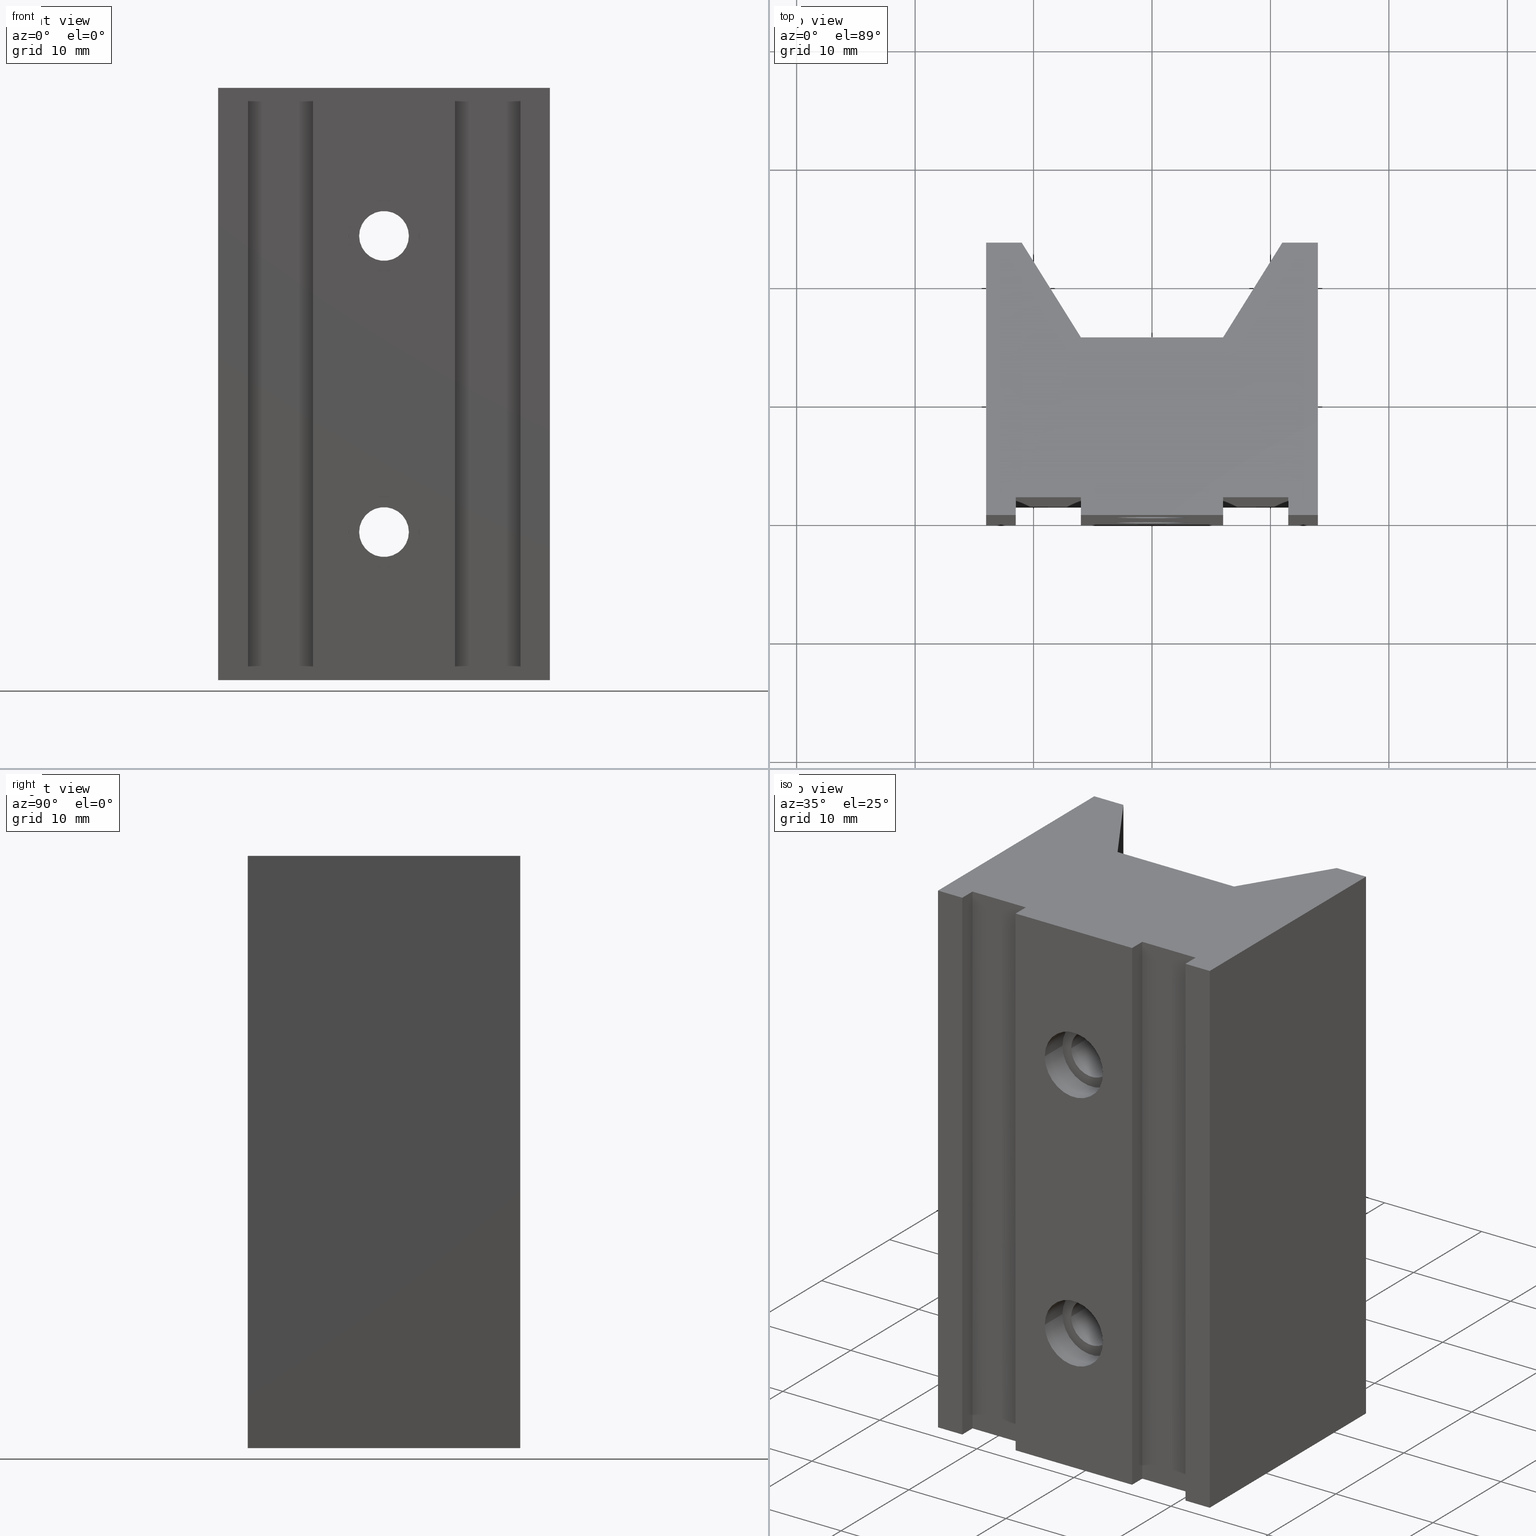
[diagram: canonical four-view strip — front | top / right | iso, engineering-drawing reading convention]
A machine part, canonical four-view strip (front | top / right | iso — engineering-drawing reading convention). The complete STEP part file that produces these views, byte-faithful:
ISO-10303-21;
HEADER;
/* Generated by software containing ST-Developer
 * from STEP Tools, Inc. (www.steptools.com) 
 */

FILE_DESCRIPTION(
/* description */ ('WKZ-0473'),
/* implementation_level */ '2;1');

FILE_NAME(
/* name */ 'O_3_02_10_05_00_WKZ-0473.stp',
/* time_stamp */ '2025-11-18T16:16:29+01:00',
/* author */ ('d.fischer'),
/* organization */ (''),
/* preprocessor_version */ 'ST-DEVELOPER v20',
/* originating_system */ 'Autodesk Inventor 2025',
/* authorisation */ '');

FILE_SCHEMA (('AUTOMOTIVE_DESIGN { 1 0 10303 214 3 1 1 }'));
ENDSEC;

DATA;
#10=MECHANICAL_DESIGN_GEOMETRIC_PRESENTATION_REPRESENTATION('',(#13),#846);
#11=SHAPE_REPRESENTATION_RELATIONSHIP('SRR','None',#853,#12);
#12=ADVANCED_BREP_SHAPE_REPRESENTATION('',(#14),#845);
#13=STYLED_ITEM('',(#862),#14);
#14=MANIFOLD_SOLID_BREP('Volumenk\X\F6rper1',#505);
#15=FACE_BOUND('',#75,.T.);
#16=FACE_BOUND('',#78,.T.);
#17=FACE_BOUND('',#80,.T.);
#18=FACE_BOUND('',#84,.T.);
#19=FACE_BOUND('',#94,.T.);
#20=FACE_BOUND('',#95,.T.);
#21=FACE_BOUND('',#104,.T.);
#22=FACE_BOUND('',#105,.T.);
#23=PLANE('',#531);
#24=PLANE('',#536);
#25=PLANE('',#538);
#26=PLANE('',#544);
#27=PLANE('',#550);
#28=PLANE('',#551);
#29=PLANE('',#552);
#30=PLANE('',#553);
#31=PLANE('',#554);
#32=PLANE('',#555);
#33=PLANE('',#556);
#34=PLANE('',#557);
#35=PLANE('',#558);
#36=PLANE('',#559);
#37=PLANE('',#560);
#38=PLANE('',#561);
#39=PLANE('',#562);
#40=PLANE('',#563);
#41=PLANE('',#564);
#42=PLANE('',#565);
#43=PLANE('',#566);
#44=PLANE('',#567);
#45=FACE_OUTER_BOUND('',#73,.T.);
#46=FACE_OUTER_BOUND('',#74,.T.);
#47=FACE_OUTER_BOUND('',#76,.T.);
#48=FACE_OUTER_BOUND('',#77,.T.);
#49=FACE_OUTER_BOUND('',#79,.T.);
#50=FACE_OUTER_BOUND('',#81,.T.);
#51=FACE_OUTER_BOUND('',#82,.T.);
#52=FACE_OUTER_BOUND('',#83,.T.);
#53=FACE_OUTER_BOUND('',#85,.T.);
#54=FACE_OUTER_BOUND('',#86,.T.);
#55=FACE_OUTER_BOUND('',#87,.T.);
#56=FACE_OUTER_BOUND('',#88,.T.);
#57=FACE_OUTER_BOUND('',#89,.T.);
#58=FACE_OUTER_BOUND('',#90,.T.);
#59=FACE_OUTER_BOUND('',#91,.T.);
#60=FACE_OUTER_BOUND('',#92,.T.);
#61=FACE_OUTER_BOUND('',#93,.T.);
#62=FACE_OUTER_BOUND('',#96,.T.);
#63=FACE_OUTER_BOUND('',#97,.T.);
#64=FACE_OUTER_BOUND('',#98,.T.);
#65=FACE_OUTER_BOUND('',#99,.T.);
#66=FACE_OUTER_BOUND('',#100,.T.);
#67=FACE_OUTER_BOUND('',#101,.T.);
#68=FACE_OUTER_BOUND('',#102,.T.);
#69=FACE_OUTER_BOUND('',#103,.T.);
#70=FACE_OUTER_BOUND('',#106,.T.);
#71=FACE_OUTER_BOUND('',#107,.T.);
#72=FACE_OUTER_BOUND('',#108,.T.);
#73=EDGE_LOOP('',(#339,#340,#341,#342));
#74=EDGE_LOOP('',(#343));
#75=EDGE_LOOP('',(#344));
#76=EDGE_LOOP('',(#345,#346,#347,#348));
#77=EDGE_LOOP('',(#349));
#78=EDGE_LOOP('',(#350));
#79=EDGE_LOOP('',(#351));
#80=EDGE_LOOP('',(#352));
#81=EDGE_LOOP('',(#353,#354,#355,#356));
#82=EDGE_LOOP('',(#357,#358,#359,#360));
#83=EDGE_LOOP('',(#361));
#84=EDGE_LOOP('',(#362));
#85=EDGE_LOOP('',(#363,#364,#365,#366));
#86=EDGE_LOOP('',(#367,#368,#369,#370));
#87=EDGE_LOOP('',(#371,#372,#373,#374,#375,#376,#377,#378,#379,#380,#381,
#382,#383,#384,#385,#386));
#88=EDGE_LOOP('',(#387,#388,#389,#390));
#89=EDGE_LOOP('',(#391,#392,#393,#394));
#90=EDGE_LOOP('',(#395,#396,#397,#398));
#91=EDGE_LOOP('',(#399,#400,#401,#402));
#92=EDGE_LOOP('',(#403,#404,#405,#406));
#93=EDGE_LOOP('',(#407,#408,#409,#410));
#94=EDGE_LOOP('',(#411));
#95=EDGE_LOOP('',(#412));
#96=EDGE_LOOP('',(#413,#414,#415,#416));
#97=EDGE_LOOP('',(#417,#418,#419,#420));
#98=EDGE_LOOP('',(#421,#422,#423,#424));
#99=EDGE_LOOP('',(#425,#426,#427,#428));
#100=EDGE_LOOP('',(#429,#430,#431,#432));
#101=EDGE_LOOP('',(#433,#434,#435,#436));
#102=EDGE_LOOP('',(#437,#438,#439,#440));
#103=EDGE_LOOP('',(#441,#442,#443,#444));
#104=EDGE_LOOP('',(#445));
#105=EDGE_LOOP('',(#446));
#106=EDGE_LOOP('',(#447,#448,#449,#450));
#107=EDGE_LOOP('',(#451,#452,#453,#454));
#108=EDGE_LOOP('',(#455,#456,#457,#458,#459,#460,#461,#462,#463,#464,#465,
#466,#467,#468,#469,#470));
#109=LINE('',#709,#163);
#110=LINE('',#718,#164);
#111=LINE('',#731,#165);
#112=LINE('',#733,#166);
#113=LINE('',#742,#167);
#114=LINE('',#744,#168);
#115=LINE('',#748,#169);
#116=LINE('',#750,#170);
#117=LINE('',#752,#171);
#118=LINE('',#754,#172);
#119=LINE('',#756,#173);
#120=LINE('',#758,#174);
#121=LINE('',#760,#175);
#122=LINE('',#762,#176);
#123=LINE('',#764,#177);
#124=LINE('',#766,#178);
#125=LINE('',#768,#179);
#126=LINE('',#770,#180);
#127=LINE('',#772,#181);
#128=LINE('',#774,#182);
#129=LINE('',#776,#183);
#130=LINE('',#777,#184);
#131=LINE('',#780,#185);
#132=LINE('',#782,#186);
#133=LINE('',#783,#187);
#134=LINE('',#786,#188);
#135=LINE('',#787,#189);
#136=LINE('',#790,#190);
#137=LINE('',#791,#191);
#138=LINE('',#794,#192);
#139=LINE('',#795,#193);
#140=LINE('',#798,#194);
#141=LINE('',#799,#195);
#142=LINE('',#802,#196);
#143=LINE('',#803,#197);
#144=LINE('',#806,#198);
#145=LINE('',#807,#199);
#146=LINE('',#810,#200);
#147=LINE('',#811,#201);
#148=LINE('',#814,#202);
#149=LINE('',#815,#203);
#150=LINE('',#818,#204);
#151=LINE('',#819,#205);
#152=LINE('',#822,#206);
#153=LINE('',#823,#207);
#154=LINE('',#826,#208);
#155=LINE('',#827,#209);
#156=LINE('',#830,#210);
#157=LINE('',#831,#211);
#158=LINE('',#834,#212);
#159=LINE('',#835,#213);
#160=LINE('',#838,#214);
#161=LINE('',#839,#215);
#162=LINE('',#841,#216);
#163=VECTOR('',#574,3.);
#164=VECTOR('',#585,3.);
#165=VECTOR('',#602,4.);
#166=VECTOR('',#605,2.1);
#167=VECTOR('',#616,4.);
#168=VECTOR('',#619,2.1);
#169=VECTOR('',#622,10.);
#170=VECTOR('',#623,10.);
#171=VECTOR('',#624,10.);
#172=VECTOR('',#625,10.);
#173=VECTOR('',#626,10.);
#174=VECTOR('',#627,10.);
#175=VECTOR('',#628,10.);
#176=VECTOR('',#629,10.);
#177=VECTOR('',#630,10.);
#178=VECTOR('',#631,10.);
#179=VECTOR('',#632,10.);
#180=VECTOR('',#633,10.);
#181=VECTOR('',#634,10.);
#182=VECTOR('',#635,10.);
#183=VECTOR('',#636,10.);
#184=VECTOR('',#637,10.);
#185=VECTOR('',#640,10.);
#186=VECTOR('',#641,10.);
#187=VECTOR('',#642,10.);
#188=VECTOR('',#645,10.);
#189=VECTOR('',#646,10.);
#190=VECTOR('',#649,10.);
#191=VECTOR('',#650,10.);
#192=VECTOR('',#653,10.);
#193=VECTOR('',#654,10.);
#194=VECTOR('',#657,10.);
#195=VECTOR('',#658,10.);
#196=VECTOR('',#661,10.);
#197=VECTOR('',#662,10.);
#198=VECTOR('',#665,10.);
#199=VECTOR('',#666,10.);
#200=VECTOR('',#669,10.);
#201=VECTOR('',#670,10.);
#202=VECTOR('',#673,10.);
#203=VECTOR('',#674,10.);
#204=VECTOR('',#677,10.);
#205=VECTOR('',#678,10.);
#206=VECTOR('',#681,10.);
#207=VECTOR('',#682,10.);
#208=VECTOR('',#685,10.);
#209=VECTOR('',#686,10.);
#210=VECTOR('',#689,10.);
#211=VECTOR('',#690,10.);
#212=VECTOR('',#693,10.);
#213=VECTOR('',#694,10.);
#214=VECTOR('',#697,10.);
#215=VECTOR('',#698,10.);
#216=VECTOR('',#701,10.);
#217=CIRCLE('',#529,3.);
#218=CIRCLE('',#530,3.);
#219=CIRCLE('',#532,2.1);
#220=CIRCLE('',#534,3.);
#221=CIRCLE('',#535,3.);
#222=CIRCLE('',#537,2.1);
#223=CIRCLE('',#539,4.);
#224=CIRCLE('',#540,2.1);
#225=CIRCLE('',#542,4.);
#226=CIRCLE('',#545,4.);
#227=CIRCLE('',#546,2.1);
#228=CIRCLE('',#548,4.);
#229=VERTEX_POINT('',#706);
#230=VERTEX_POINT('',#708);
#231=VERTEX_POINT('',#712);
#232=VERTEX_POINT('',#715);
#233=VERTEX_POINT('',#717);
#234=VERTEX_POINT('',#721);
#235=VERTEX_POINT('',#724);
#236=VERTEX_POINT('',#726);
#237=VERTEX_POINT('',#729);
#238=VERTEX_POINT('',#735);
#239=VERTEX_POINT('',#737);
#240=VERTEX_POINT('',#740);
#241=VERTEX_POINT('',#746);
#242=VERTEX_POINT('',#747);
#243=VERTEX_POINT('',#749);
#244=VERTEX_POINT('',#751);
#245=VERTEX_POINT('',#753);
#246=VERTEX_POINT('',#755);
#247=VERTEX_POINT('',#757);
#248=VERTEX_POINT('',#759);
#249=VERTEX_POINT('',#761);
#250=VERTEX_POINT('',#763);
#251=VERTEX_POINT('',#765);
#252=VERTEX_POINT('',#767);
#253=VERTEX_POINT('',#769);
#254=VERTEX_POINT('',#771);
#255=VERTEX_POINT('',#773);
#256=VERTEX_POINT('',#775);
#257=VERTEX_POINT('',#779);
#258=VERTEX_POINT('',#781);
#259=VERTEX_POINT('',#785);
#260=VERTEX_POINT('',#789);
#261=VERTEX_POINT('',#793);
#262=VERTEX_POINT('',#797);
#263=VERTEX_POINT('',#801);
#264=VERTEX_POINT('',#805);
#265=VERTEX_POINT('',#809);
#266=VERTEX_POINT('',#813);
#267=VERTEX_POINT('',#817);
#268=VERTEX_POINT('',#821);
#269=VERTEX_POINT('',#825);
#270=VERTEX_POINT('',#829);
#271=VERTEX_POINT('',#833);
#272=VERTEX_POINT('',#837);
#273=EDGE_CURVE('',#229,#229,#217,.T.);
#274=EDGE_CURVE('',#229,#230,#109,.T.);
#275=EDGE_CURVE('',#230,#230,#218,.T.);
#276=EDGE_CURVE('',#231,#231,#219,.T.);
#277=EDGE_CURVE('',#232,#232,#220,.T.);
#278=EDGE_CURVE('',#232,#233,#110,.T.);
#279=EDGE_CURVE('',#233,#233,#221,.T.);
#280=EDGE_CURVE('',#234,#234,#222,.T.);
#281=EDGE_CURVE('',#235,#235,#223,.T.);
#282=EDGE_CURVE('',#236,#236,#224,.T.);
#283=EDGE_CURVE('',#237,#237,#225,.T.);
#284=EDGE_CURVE('',#237,#235,#111,.T.);
#285=EDGE_CURVE('',#236,#231,#112,.T.);
#286=EDGE_CURVE('',#238,#238,#226,.T.);
#287=EDGE_CURVE('',#239,#239,#227,.T.);
#288=EDGE_CURVE('',#240,#240,#228,.T.);
#289=EDGE_CURVE('',#240,#238,#113,.T.);
#290=EDGE_CURVE('',#239,#234,#114,.T.);
#291=EDGE_CURVE('',#241,#242,#115,.T.);
#292=EDGE_CURVE('',#242,#243,#116,.T.);
#293=EDGE_CURVE('',#243,#244,#117,.T.);
#294=EDGE_CURVE('',#244,#245,#118,.T.);
#295=EDGE_CURVE('',#245,#246,#119,.T.);
#296=EDGE_CURVE('',#246,#247,#120,.T.);
#297=EDGE_CURVE('',#247,#248,#121,.T.);
#298=EDGE_CURVE('',#248,#249,#122,.T.);
#299=EDGE_CURVE('',#249,#250,#123,.T.);
#300=EDGE_CURVE('',#250,#251,#124,.T.);
#301=EDGE_CURVE('',#251,#252,#125,.T.);
#302=EDGE_CURVE('',#252,#253,#126,.T.);
#303=EDGE_CURVE('',#253,#254,#127,.T.);
#304=EDGE_CURVE('',#254,#255,#128,.T.);
#305=EDGE_CURVE('',#255,#256,#129,.T.);
#306=EDGE_CURVE('',#256,#241,#130,.T.);
#307=EDGE_CURVE('',#257,#242,#131,.T.);
#308=EDGE_CURVE('',#258,#257,#132,.T.);
#309=EDGE_CURVE('',#243,#258,#133,.T.);
#310=EDGE_CURVE('',#259,#258,#134,.T.);
#311=EDGE_CURVE('',#244,#259,#135,.T.);
#312=EDGE_CURVE('',#260,#259,#136,.T.);
#313=EDGE_CURVE('',#245,#260,#137,.T.);
#314=EDGE_CURVE('',#261,#260,#138,.T.);
#315=EDGE_CURVE('',#246,#261,#139,.T.);
#316=EDGE_CURVE('',#262,#261,#140,.T.);
#317=EDGE_CURVE('',#247,#262,#141,.T.);
#318=EDGE_CURVE('',#263,#262,#142,.T.);
#319=EDGE_CURVE('',#248,#263,#143,.T.);
#320=EDGE_CURVE('',#264,#263,#144,.T.);
#321=EDGE_CURVE('',#249,#264,#145,.T.);
#322=EDGE_CURVE('',#265,#264,#146,.T.);
#323=EDGE_CURVE('',#250,#265,#147,.T.);
#324=EDGE_CURVE('',#266,#265,#148,.T.);
#325=EDGE_CURVE('',#251,#266,#149,.T.);
#326=EDGE_CURVE('',#267,#266,#150,.T.);
#327=EDGE_CURVE('',#252,#267,#151,.T.);
#328=EDGE_CURVE('',#268,#267,#152,.T.);
#329=EDGE_CURVE('',#253,#268,#153,.T.);
#330=EDGE_CURVE('',#269,#268,#154,.T.);
#331=EDGE_CURVE('',#254,#269,#155,.T.);
#332=EDGE_CURVE('',#270,#269,#156,.T.);
#333=EDGE_CURVE('',#255,#270,#157,.T.);
#334=EDGE_CURVE('',#271,#270,#158,.T.);
#335=EDGE_CURVE('',#256,#271,#159,.T.);
#336=EDGE_CURVE('',#272,#271,#160,.T.);
#337=EDGE_CURVE('',#241,#272,#161,.T.);
#338=EDGE_CURVE('',#257,#272,#162,.T.);
#339=ORIENTED_EDGE('',*,*,#273,.F.);
#340=ORIENTED_EDGE('',*,*,#274,.T.);
#341=ORIENTED_EDGE('',*,*,#275,.F.);
#342=ORIENTED_EDGE('',*,*,#274,.F.);
#343=ORIENTED_EDGE('',*,*,#275,.T.);
#344=ORIENTED_EDGE('',*,*,#276,.F.);
#345=ORIENTED_EDGE('',*,*,#277,.F.);
#346=ORIENTED_EDGE('',*,*,#278,.T.);
#347=ORIENTED_EDGE('',*,*,#279,.F.);
#348=ORIENTED_EDGE('',*,*,#278,.F.);
#349=ORIENTED_EDGE('',*,*,#279,.T.);
#350=ORIENTED_EDGE('',*,*,#280,.F.);
#351=ORIENTED_EDGE('',*,*,#281,.T.);
#352=ORIENTED_EDGE('',*,*,#282,.F.);
#353=ORIENTED_EDGE('',*,*,#283,.F.);
#354=ORIENTED_EDGE('',*,*,#284,.T.);
#355=ORIENTED_EDGE('',*,*,#281,.F.);
#356=ORIENTED_EDGE('',*,*,#284,.F.);
#357=ORIENTED_EDGE('',*,*,#282,.T.);
#358=ORIENTED_EDGE('',*,*,#285,.T.);
#359=ORIENTED_EDGE('',*,*,#276,.T.);
#360=ORIENTED_EDGE('',*,*,#285,.F.);
#361=ORIENTED_EDGE('',*,*,#286,.T.);
#362=ORIENTED_EDGE('',*,*,#287,.F.);
#363=ORIENTED_EDGE('',*,*,#288,.F.);
#364=ORIENTED_EDGE('',*,*,#289,.T.);
#365=ORIENTED_EDGE('',*,*,#286,.F.);
#366=ORIENTED_EDGE('',*,*,#289,.F.);
#367=ORIENTED_EDGE('',*,*,#287,.T.);
#368=ORIENTED_EDGE('',*,*,#290,.T.);
#369=ORIENTED_EDGE('',*,*,#280,.T.);
#370=ORIENTED_EDGE('',*,*,#290,.F.);
#371=ORIENTED_EDGE('',*,*,#291,.T.);
#372=ORIENTED_EDGE('',*,*,#292,.T.);
#373=ORIENTED_EDGE('',*,*,#293,.T.);
#374=ORIENTED_EDGE('',*,*,#294,.T.);
#375=ORIENTED_EDGE('',*,*,#295,.T.);
#376=ORIENTED_EDGE('',*,*,#296,.T.);
#377=ORIENTED_EDGE('',*,*,#297,.T.);
#378=ORIENTED_EDGE('',*,*,#298,.T.);
#379=ORIENTED_EDGE('',*,*,#299,.T.);
#380=ORIENTED_EDGE('',*,*,#300,.T.);
#381=ORIENTED_EDGE('',*,*,#301,.T.);
#382=ORIENTED_EDGE('',*,*,#302,.T.);
#383=ORIENTED_EDGE('',*,*,#303,.T.);
#384=ORIENTED_EDGE('',*,*,#304,.T.);
#385=ORIENTED_EDGE('',*,*,#305,.T.);
#386=ORIENTED_EDGE('',*,*,#306,.T.);
#387=ORIENTED_EDGE('',*,*,#307,.F.);
#388=ORIENTED_EDGE('',*,*,#308,.F.);
#389=ORIENTED_EDGE('',*,*,#309,.F.);
#390=ORIENTED_EDGE('',*,*,#292,.F.);
#391=ORIENTED_EDGE('',*,*,#309,.T.);
#392=ORIENTED_EDGE('',*,*,#310,.F.);
#393=ORIENTED_EDGE('',*,*,#311,.F.);
#394=ORIENTED_EDGE('',*,*,#293,.F.);
#395=ORIENTED_EDGE('',*,*,#311,.T.);
#396=ORIENTED_EDGE('',*,*,#312,.F.);
#397=ORIENTED_EDGE('',*,*,#313,.F.);
#398=ORIENTED_EDGE('',*,*,#294,.F.);
#399=ORIENTED_EDGE('',*,*,#313,.T.);
#400=ORIENTED_EDGE('',*,*,#314,.F.);
#401=ORIENTED_EDGE('',*,*,#315,.F.);
#402=ORIENTED_EDGE('',*,*,#295,.F.);
#403=ORIENTED_EDGE('',*,*,#315,.T.);
#404=ORIENTED_EDGE('',*,*,#316,.F.);
#405=ORIENTED_EDGE('',*,*,#317,.F.);
#406=ORIENTED_EDGE('',*,*,#296,.F.);
#407=ORIENTED_EDGE('',*,*,#317,.T.);
#408=ORIENTED_EDGE('',*,*,#318,.F.);
#409=ORIENTED_EDGE('',*,*,#319,.F.);
#410=ORIENTED_EDGE('',*,*,#297,.F.);
#411=ORIENTED_EDGE('',*,*,#273,.T.);
#412=ORIENTED_EDGE('',*,*,#277,.T.);
#413=ORIENTED_EDGE('',*,*,#319,.T.);
#414=ORIENTED_EDGE('',*,*,#320,.F.);
#415=ORIENTED_EDGE('',*,*,#321,.F.);
#416=ORIENTED_EDGE('',*,*,#298,.F.);
#417=ORIENTED_EDGE('',*,*,#321,.T.);
#418=ORIENTED_EDGE('',*,*,#322,.F.);
#419=ORIENTED_EDGE('',*,*,#323,.F.);
#420=ORIENTED_EDGE('',*,*,#299,.F.);
#421=ORIENTED_EDGE('',*,*,#323,.T.);
#422=ORIENTED_EDGE('',*,*,#324,.F.);
#423=ORIENTED_EDGE('',*,*,#325,.F.);
#424=ORIENTED_EDGE('',*,*,#300,.F.);
#425=ORIENTED_EDGE('',*,*,#325,.T.);
#426=ORIENTED_EDGE('',*,*,#326,.F.);
#427=ORIENTED_EDGE('',*,*,#327,.F.);
#428=ORIENTED_EDGE('',*,*,#301,.F.);
#429=ORIENTED_EDGE('',*,*,#327,.T.);
#430=ORIENTED_EDGE('',*,*,#328,.F.);
#431=ORIENTED_EDGE('',*,*,#329,.F.);
#432=ORIENTED_EDGE('',*,*,#302,.F.);
#433=ORIENTED_EDGE('',*,*,#329,.T.);
#434=ORIENTED_EDGE('',*,*,#330,.F.);
#435=ORIENTED_EDGE('',*,*,#331,.F.);
#436=ORIENTED_EDGE('',*,*,#303,.F.);
#437=ORIENTED_EDGE('',*,*,#331,.T.);
#438=ORIENTED_EDGE('',*,*,#332,.F.);
#439=ORIENTED_EDGE('',*,*,#333,.F.);
#440=ORIENTED_EDGE('',*,*,#304,.F.);
#441=ORIENTED_EDGE('',*,*,#333,.T.);
#442=ORIENTED_EDGE('',*,*,#334,.F.);
#443=ORIENTED_EDGE('',*,*,#335,.F.);
#444=ORIENTED_EDGE('',*,*,#305,.F.);
#445=ORIENTED_EDGE('',*,*,#283,.T.);
#446=ORIENTED_EDGE('',*,*,#288,.T.);
#447=ORIENTED_EDGE('',*,*,#335,.T.);
#448=ORIENTED_EDGE('',*,*,#336,.F.);
#449=ORIENTED_EDGE('',*,*,#337,.F.);
#450=ORIENTED_EDGE('',*,*,#306,.F.);
#451=ORIENTED_EDGE('',*,*,#337,.T.);
#452=ORIENTED_EDGE('',*,*,#338,.F.);
#453=ORIENTED_EDGE('',*,*,#307,.T.);
#454=ORIENTED_EDGE('',*,*,#291,.F.);
#455=ORIENTED_EDGE('',*,*,#338,.T.);
#456=ORIENTED_EDGE('',*,*,#336,.T.);
#457=ORIENTED_EDGE('',*,*,#334,.T.);
#458=ORIENTED_EDGE('',*,*,#332,.T.);
#459=ORIENTED_EDGE('',*,*,#330,.T.);
#460=ORIENTED_EDGE('',*,*,#328,.T.);
#461=ORIENTED_EDGE('',*,*,#326,.T.);
#462=ORIENTED_EDGE('',*,*,#324,.T.);
#463=ORIENTED_EDGE('',*,*,#322,.T.);
#464=ORIENTED_EDGE('',*,*,#320,.T.);
#465=ORIENTED_EDGE('',*,*,#318,.T.);
#466=ORIENTED_EDGE('',*,*,#316,.T.);
#467=ORIENTED_EDGE('',*,*,#314,.T.);
#468=ORIENTED_EDGE('',*,*,#312,.T.);
#469=ORIENTED_EDGE('',*,*,#310,.T.);
#470=ORIENTED_EDGE('',*,*,#308,.T.);
#471=CYLINDRICAL_SURFACE('',#528,3.);
#472=CYLINDRICAL_SURFACE('',#533,3.);
#473=CYLINDRICAL_SURFACE('',#541,4.);
#474=CYLINDRICAL_SURFACE('',#543,2.1);
#475=CYLINDRICAL_SURFACE('',#547,4.);
#476=CYLINDRICAL_SURFACE('',#549,2.1);
#477=ADVANCED_FACE('',(#45),#471,.F.);
#478=ADVANCED_FACE('',(#46,#15),#23,.T.);
#479=ADVANCED_FACE('',(#47),#472,.F.);
#480=ADVANCED_FACE('',(#48,#16),#24,.T.);
#481=ADVANCED_FACE('',(#49,#17),#25,.T.);
#482=ADVANCED_FACE('',(#50),#473,.F.);
#483=ADVANCED_FACE('',(#51),#474,.F.);
#484=ADVANCED_FACE('',(#52,#18),#26,.T.);
#485=ADVANCED_FACE('',(#53),#475,.F.);
#486=ADVANCED_FACE('',(#54),#476,.F.);
#487=ADVANCED_FACE('',(#55),#27,.T.);
#488=ADVANCED_FACE('',(#56),#28,.T.);
#489=ADVANCED_FACE('',(#57),#29,.T.);
#490=ADVANCED_FACE('',(#58),#30,.T.);
#491=ADVANCED_FACE('',(#59),#31,.T.);
#492=ADVANCED_FACE('',(#60),#32,.T.);
#493=ADVANCED_FACE('',(#61,#19,#20),#33,.T.);
#494=ADVANCED_FACE('',(#62),#34,.T.);
#495=ADVANCED_FACE('',(#63),#35,.T.);
#496=ADVANCED_FACE('',(#64),#36,.T.);
#497=ADVANCED_FACE('',(#65),#37,.T.);
#498=ADVANCED_FACE('',(#66),#38,.T.);
#499=ADVANCED_FACE('',(#67),#39,.T.);
#500=ADVANCED_FACE('',(#68),#40,.T.);
#501=ADVANCED_FACE('',(#69,#21,#22),#41,.T.);
#502=ADVANCED_FACE('',(#70),#42,.T.);
#503=ADVANCED_FACE('',(#71),#43,.T.);
#504=ADVANCED_FACE('',(#72),#44,.T.);
#505=CLOSED_SHELL('',(#477,#478,#479,#480,#481,#482,#483,#484,#485,#486,
#487,#488,#489,#490,#491,#492,#493,#494,#495,#496,#497,#498,#499,#500,#501,
#502,#503,#504));
#506=DERIVED_UNIT_ELEMENT(#509,1.);
#507=DERIVED_UNIT_ELEMENT(#848,-3.);
#508=DIMENSIONAL_EXPONENTS(0.,1.,0.,0.,0.,0.,0.);
#509=(
CONVERSION_BASED_UNIT('gram',#511)
MASS_UNIT()
NAMED_UNIT(#508)
);
#510=(
MASS_UNIT()
NAMED_UNIT(*)
SI_UNIT(.KILO.,.GRAM.)
);
#511=MASS_MEASURE_WITH_UNIT(MASS_MEASURE(0.001),#510);
#512=DERIVED_UNIT((#506,#507));
#513=MEASURE_REPRESENTATION_ITEM('density measure',
POSITIVE_RATIO_MEASURE(1.),#512);
#514=PROPERTY_DEFINITION_REPRESENTATION(#519,#516);
#515=PROPERTY_DEFINITION_REPRESENTATION(#520,#517);
#516=REPRESENTATION('material name',(#518),#845);
#517=REPRESENTATION('density',(#513),#845);
#518=DESCRIPTIVE_REPRESENTATION_ITEM('Generisch','Generisch');
#519=PROPERTY_DEFINITION('material property','material name',#855);
#520=PROPERTY_DEFINITION('material property','density of part',#855);
#521=DATE_TIME_ROLE('creation_date');
#522=APPLIED_DATE_AND_TIME_ASSIGNMENT(#523,#521,(#855));
#523=DATE_AND_TIME(#524,#525);
#524=CALENDAR_DATE(2025,19,9);
#525=LOCAL_TIME(0,0,0.,#526);
#526=COORDINATED_UNIVERSAL_TIME_OFFSET(0,0,.BEHIND.);
#527=AXIS2_PLACEMENT_3D('',#704,#568,#569);
#528=AXIS2_PLACEMENT_3D('',#705,#570,#571);
#529=AXIS2_PLACEMENT_3D('',#707,#572,#573);
#530=AXIS2_PLACEMENT_3D('',#710,#575,#576);
#531=AXIS2_PLACEMENT_3D('',#711,#577,#578);
#532=AXIS2_PLACEMENT_3D('',#713,#579,#580);
#533=AXIS2_PLACEMENT_3D('',#714,#581,#582);
#534=AXIS2_PLACEMENT_3D('',#716,#583,#584);
#535=AXIS2_PLACEMENT_3D('',#719,#586,#587);
#536=AXIS2_PLACEMENT_3D('',#720,#588,#589);
#537=AXIS2_PLACEMENT_3D('',#722,#590,#591);
#538=AXIS2_PLACEMENT_3D('',#723,#592,#593);
#539=AXIS2_PLACEMENT_3D('',#725,#594,#595);
#540=AXIS2_PLACEMENT_3D('',#727,#596,#597);
#541=AXIS2_PLACEMENT_3D('',#728,#598,#599);
#542=AXIS2_PLACEMENT_3D('',#730,#600,#601);
#543=AXIS2_PLACEMENT_3D('',#732,#603,#604);
#544=AXIS2_PLACEMENT_3D('',#734,#606,#607);
#545=AXIS2_PLACEMENT_3D('',#736,#608,#609);
#546=AXIS2_PLACEMENT_3D('',#738,#610,#611);
#547=AXIS2_PLACEMENT_3D('',#739,#612,#613);
#548=AXIS2_PLACEMENT_3D('',#741,#614,#615);
#549=AXIS2_PLACEMENT_3D('',#743,#617,#618);
#550=AXIS2_PLACEMENT_3D('',#745,#620,#621);
#551=AXIS2_PLACEMENT_3D('',#778,#638,#639);
#552=AXIS2_PLACEMENT_3D('',#784,#643,#644);
#553=AXIS2_PLACEMENT_3D('',#788,#647,#648);
#554=AXIS2_PLACEMENT_3D('',#792,#651,#652);
#555=AXIS2_PLACEMENT_3D('',#796,#655,#656);
#556=AXIS2_PLACEMENT_3D('',#800,#659,#660);
#557=AXIS2_PLACEMENT_3D('',#804,#663,#664);
#558=AXIS2_PLACEMENT_3D('',#808,#667,#668);
#559=AXIS2_PLACEMENT_3D('',#812,#671,#672);
#560=AXIS2_PLACEMENT_3D('',#816,#675,#676);
#561=AXIS2_PLACEMENT_3D('',#820,#679,#680);
#562=AXIS2_PLACEMENT_3D('',#824,#683,#684);
#563=AXIS2_PLACEMENT_3D('',#828,#687,#688);
#564=AXIS2_PLACEMENT_3D('',#832,#691,#692);
#565=AXIS2_PLACEMENT_3D('',#836,#695,#696);
#566=AXIS2_PLACEMENT_3D('',#840,#699,#700);
#567=AXIS2_PLACEMENT_3D('',#842,#702,#703);
#568=DIRECTION('axis',(0.,0.,1.));
#569=DIRECTION('refdir',(1.,0.,0.));
#570=DIRECTION('center_axis',(4.62592926927148E-16,-1.,0.));
#571=DIRECTION('ref_axis',(1.,4.62592926927148E-16,0.));
#572=DIRECTION('center_axis',(-4.62592926927148E-16,1.,0.));
#573=DIRECTION('ref_axis',(1.,4.62592926927148E-16,0.));
#574=DIRECTION('',(-4.62592926927148E-16,1.,0.));
#575=DIRECTION('center_axis',(4.62592926927148E-16,-1.,0.));
#576=DIRECTION('ref_axis',(1.,4.62592926927148E-16,0.));
#577=DIRECTION('center_axis',(4.62592926927148E-16,-1.,0.));
#578=DIRECTION('ref_axis',(1.,4.62592926927148E-16,0.));
#579=DIRECTION('center_axis',(4.62592926927148E-16,-1.,0.));
#580=DIRECTION('ref_axis',(1.,3.70074341541719E-16,0.));
#581=DIRECTION('center_axis',(4.62592926927148E-16,-1.,0.));
#582=DIRECTION('ref_axis',(1.,4.62592926927148E-16,0.));
#583=DIRECTION('center_axis',(-4.62592926927148E-16,1.,0.));
#584=DIRECTION('ref_axis',(1.,4.62592926927148E-16,0.));
#585=DIRECTION('',(-4.62592926927148E-16,1.,0.));
#586=DIRECTION('center_axis',(4.62592926927148E-16,-1.,0.));
#587=DIRECTION('ref_axis',(1.,4.62592926927148E-16,0.));
#588=DIRECTION('center_axis',(4.62592926927148E-16,-1.,0.));
#589=DIRECTION('ref_axis',(1.,4.62592926927148E-16,0.));
#590=DIRECTION('center_axis',(4.62592926927148E-16,-1.,0.));
#591=DIRECTION('ref_axis',(1.,3.70074341541719E-16,0.));
#592=DIRECTION('center_axis',(-3.70074341541719E-16,1.,0.));
#593=DIRECTION('ref_axis',(1.,3.70074341541719E-16,0.));
#594=DIRECTION('center_axis',(-3.70074341541719E-16,1.,0.));
#595=DIRECTION('ref_axis',(1.,3.70074341541719E-16,0.));
#596=DIRECTION('center_axis',(-3.70074341541719E-16,1.,0.));
#597=DIRECTION('ref_axis',(1.,3.70074341541719E-16,0.));
#598=DIRECTION('center_axis',(-3.70074341541719E-16,1.,0.));
#599=DIRECTION('ref_axis',(1.,3.70074341541719E-16,0.));
#600=DIRECTION('center_axis',(3.70074341541719E-16,-1.,0.));
#601=DIRECTION('ref_axis',(1.,3.70074341541719E-16,0.));
#602=DIRECTION('',(3.70074341541719E-16,-1.,0.));
#603=DIRECTION('center_axis',(-3.70074341541719E-16,1.,0.));
#604=DIRECTION('ref_axis',(1.,3.70074341541719E-16,0.));
#605=DIRECTION('',(3.70074341541719E-16,-1.,0.));
#606=DIRECTION('center_axis',(-3.70074341541719E-16,1.,0.));
#607=DIRECTION('ref_axis',(1.,3.70074341541719E-16,0.));
#608=DIRECTION('center_axis',(-3.70074341541719E-16,1.,0.));
#609=DIRECTION('ref_axis',(1.,3.70074341541719E-16,0.));
#610=DIRECTION('center_axis',(-3.70074341541719E-16,1.,0.));
#611=DIRECTION('ref_axis',(1.,3.70074341541719E-16,0.));
#612=DIRECTION('center_axis',(-3.70074341541719E-16,1.,0.));
#613=DIRECTION('ref_axis',(1.,3.70074341541719E-16,0.));
#614=DIRECTION('center_axis',(3.70074341541719E-16,-1.,0.));
#615=DIRECTION('ref_axis',(1.,3.70074341541719E-16,0.));
#616=DIRECTION('',(3.70074341541719E-16,-1.,0.));
#617=DIRECTION('center_axis',(-3.70074341541719E-16,1.,0.));
#618=DIRECTION('ref_axis',(1.,3.70074341541719E-16,0.));
#619=DIRECTION('',(3.70074341541719E-16,-1.,0.));
#620=DIRECTION('center_axis',(0.,0.,-1.));
#621=DIRECTION('ref_axis',(-1.,0.,0.));
#622=DIRECTION('',(1.,-4.44089209850064E-15,0.));
#623=DIRECTION('',(6.75787928032704E-16,-1.,0.));
#624=DIRECTION('',(-1.,-5.77315972805082E-15,0.));
#625=DIRECTION('',(0.,1.,0.));
#626=DIRECTION('',(-1.,-2.01858731750028E-16,0.));
#627=DIRECTION('',(7.40148683083425E-16,-1.,0.));
#628=DIRECTION('',(-1.,-4.62592926927148E-16,0.));
#629=DIRECTION('',(-7.40148683083424E-16,1.,0.));
#630=DIRECTION('',(-1.,-2.52323414687536E-16,0.));
#631=DIRECTION('',(1.48029736616685E-15,-1.,0.));
#632=DIRECTION('',(-1.,-8.88178419700126E-16,0.));
#633=DIRECTION('',(-9.65411325761005E-17,1.,0.));
#634=DIRECTION('',(1.,5.92118946466752E-15,0.));
#635=DIRECTION('',(0.529998940003179,-0.847998304005088,0.));
#636=DIRECTION('',(1.,3.70074341541719E-16,0.));
#637=DIRECTION('',(0.529998940003179,0.847998304005089,0.));
#638=DIRECTION('center_axis',(1.,6.75787928032704E-16,0.));
#639=DIRECTION('ref_axis',(-6.75787928032704E-16,1.,0.));
#640=DIRECTION('',(0.,0.,-1.));
#641=DIRECTION('',(-6.75787928032704E-16,1.,0.));
#642=DIRECTION('',(0.,0.,1.));
#643=DIRECTION('center_axis',(5.77315972805082E-15,-1.,0.));
#644=DIRECTION('ref_axis',(1.,5.77315972805082E-15,0.));
#645=DIRECTION('',(1.,5.77315972805082E-15,0.));
#646=DIRECTION('',(0.,0.,1.));
#647=DIRECTION('center_axis',(-1.,0.,0.));
#648=DIRECTION('ref_axis',(0.,-1.,0.));
#649=DIRECTION('',(0.,-1.,0.));
#650=DIRECTION('',(0.,0.,1.));
#651=DIRECTION('center_axis',(2.01858731750028E-16,-1.,0.));
#652=DIRECTION('ref_axis',(1.,2.01858731750028E-16,0.));
#653=DIRECTION('',(1.,2.01858731750028E-16,0.));
#654=DIRECTION('',(0.,0.,1.));
#655=DIRECTION('center_axis',(1.,7.40148683083425E-16,0.));
#656=DIRECTION('ref_axis',(-7.40148683083425E-16,1.,0.));
#657=DIRECTION('',(-7.40148683083425E-16,1.,0.));
#658=DIRECTION('',(0.,0.,1.));
#659=DIRECTION('center_axis',(4.62592926927148E-16,-1.,0.));
#660=DIRECTION('ref_axis',(1.,4.62592926927148E-16,0.));
#661=DIRECTION('',(1.,4.62592926927148E-16,0.));
#662=DIRECTION('',(0.,0.,1.));
#663=DIRECTION('center_axis',(-1.,-7.40148683083424E-16,0.));
#664=DIRECTION('ref_axis',(7.40148683083424E-16,-1.,0.));
#665=DIRECTION('',(7.40148683083424E-16,-1.,0.));
#666=DIRECTION('',(0.,0.,1.));
#667=DIRECTION('center_axis',(2.52323414687536E-16,-1.,0.));
#668=DIRECTION('ref_axis',(1.,2.52323414687536E-16,0.));
#669=DIRECTION('',(1.,2.52323414687536E-16,0.));
#670=DIRECTION('',(0.,0.,1.));
#671=DIRECTION('center_axis',(1.,1.48029736616685E-15,0.));
#672=DIRECTION('ref_axis',(-1.48029736616685E-15,1.,0.));
#673=DIRECTION('',(-1.48029736616685E-15,1.,0.));
#674=DIRECTION('',(0.,0.,1.));
#675=DIRECTION('center_axis',(8.88178419700126E-16,-1.,0.));
#676=DIRECTION('ref_axis',(1.,8.88178419700126E-16,0.));
#677=DIRECTION('',(1.,8.88178419700126E-16,0.));
#678=DIRECTION('',(0.,0.,1.));
#679=DIRECTION('center_axis',(-1.,-9.65411325761005E-17,0.));
#680=DIRECTION('ref_axis',(9.65411325761005E-17,-1.,0.));
#681=DIRECTION('',(9.65411325761005E-17,-1.,0.));
#682=DIRECTION('',(0.,0.,1.));
#683=DIRECTION('center_axis',(-5.92118946466752E-15,1.,0.));
#684=DIRECTION('ref_axis',(-1.,-5.92118946466752E-15,0.));
#685=DIRECTION('',(-1.,-5.92118946466752E-15,0.));
#686=DIRECTION('',(0.,0.,1.));
#687=DIRECTION('center_axis',(0.847998304005088,0.529998940003179,0.));
#688=DIRECTION('ref_axis',(-0.529998940003179,0.847998304005088,0.));
#689=DIRECTION('',(-0.529998940003179,0.847998304005088,0.));
#690=DIRECTION('',(0.,0.,1.));
#691=DIRECTION('center_axis',(-3.70074341541719E-16,1.,0.));
#692=DIRECTION('ref_axis',(-1.,-3.70074341541719E-16,0.));
#693=DIRECTION('',(-1.,-3.70074341541719E-16,0.));
#694=DIRECTION('',(0.,0.,1.));
#695=DIRECTION('center_axis',(-0.847998304005089,0.529998940003179,0.));
#696=DIRECTION('ref_axis',(-0.529998940003179,-0.847998304005089,0.));
#697=DIRECTION('',(-0.529998940003179,-0.847998304005089,0.));
#698=DIRECTION('',(0.,0.,1.));
#699=DIRECTION('center_axis',(4.44089209850064E-15,1.,0.));
#700=DIRECTION('ref_axis',(-1.,4.44089209850064E-15,0.));
#701=DIRECTION('',(-1.,4.44089209850064E-15,0.));
#702=DIRECTION('center_axis',(0.,0.,1.));
#703=DIRECTION('ref_axis',(1.,0.,0.));
#704=CARTESIAN_POINT('',(0.,0.,0.));
#705=CARTESIAN_POINT('Origin',(-8.37293197738139E-15,1.3,-12.5));
#706=CARTESIAN_POINT('',(-3.00000000000001,-5.27355936696949E-15,-12.5));
#707=CARTESIAN_POINT('Origin',(-7.7715611723761E-15,-3.88578058618805E-15,
-12.5));
#708=CARTESIAN_POINT('',(-3.00000000000001,2.6,-12.5));
#709=CARTESIAN_POINT('',(-3.00000000000001,1.29999999999999,-12.5));
#710=CARTESIAN_POINT('Origin',(-8.97430278238668E-15,2.6,-12.5));
#711=CARTESIAN_POINT('Origin',(-8.97430278238668E-15,2.6,-12.5));
#712=CARTESIAN_POINT('',(-2.10000000000001,2.6,-12.5));
#713=CARTESIAN_POINT('Origin',(-8.73375446038456E-15,2.6,-12.5));
#714=CARTESIAN_POINT('Origin',(-6.01370805005293E-16,1.3,12.5));
#715=CARTESIAN_POINT('',(-3.,-5.27355936696949E-15,12.5));
#716=CARTESIAN_POINT('Origin',(0.,-3.88578058618805E-15,12.5));
#717=CARTESIAN_POINT('',(-3.,2.6,12.5));
#718=CARTESIAN_POINT('',(-3.,1.29999999999999,12.5));
#719=CARTESIAN_POINT('Origin',(-1.20274161001059E-15,2.6,12.5));
#720=CARTESIAN_POINT('Origin',(-1.20274161001059E-15,2.6,12.5));
#721=CARTESIAN_POINT('',(-2.1,2.6,12.5));
#722=CARTESIAN_POINT('Origin',(-9.62193288008466E-16,2.6,12.5));
#723=CARTESIAN_POINT('Origin',(-1.13612822853308E-14,9.70000000000001,-12.5));
#724=CARTESIAN_POINT('',(-4.00000000000001,9.7,-12.5));
#725=CARTESIAN_POINT('Origin',(-1.13612822853308E-14,9.70000000000001,-12.5));
#726=CARTESIAN_POINT('',(-2.10000000000001,9.7,-12.5));
#727=CARTESIAN_POINT('Origin',(-1.13612822853308E-14,9.7,-12.5));
#728=CARTESIAN_POINT('Origin',(-1.23419792904163E-14,12.35,-12.5));
#729=CARTESIAN_POINT('',(-4.00000000000001,15.,-12.5));
#730=CARTESIAN_POINT('Origin',(-1.33226762955019E-14,15.,-12.5));
#731=CARTESIAN_POINT('',(-4.00000000000001,12.35,-12.5));
#732=CARTESIAN_POINT('Origin',(9.529227009346E-15,-46.7494939250517,-12.5));
#733=CARTESIAN_POINT('',(-2.09999999999999,-46.7494939250517,-12.5));
#734=CARTESIAN_POINT('Origin',(-3.58972111295467E-15,9.70000000000001,12.5));
#735=CARTESIAN_POINT('',(-4.,9.7,12.5));
#736=CARTESIAN_POINT('Origin',(-3.58972111295467E-15,9.70000000000001,12.5));
#737=CARTESIAN_POINT('',(-2.1,9.7,12.5));
#738=CARTESIAN_POINT('Origin',(-3.58972111295467E-15,9.7,12.5));
#739=CARTESIAN_POINT('Origin',(-4.57041811804023E-15,12.35,12.5));
#740=CARTESIAN_POINT('',(-4.00000000000001,15.,12.5));
#741=CARTESIAN_POINT('Origin',(-5.55111512312578E-15,15.,12.5));
#742=CARTESIAN_POINT('',(-4.,12.35,12.5));
#743=CARTESIAN_POINT('Origin',(1.73007881817221E-14,-46.7494939250517,12.5));
#744=CARTESIAN_POINT('',(-2.09999999999998,-46.7494939250517,12.5));
#745=CARTESIAN_POINT('Origin',(0.,11.5,-25.));
#746=CARTESIAN_POINT('',(11.,23.,-25.));
#747=CARTESIAN_POINT('',(14.,23.,-25.));
#748=CARTESIAN_POINT('',(14.,23.,-25.));
#749=CARTESIAN_POINT('',(14.,4.44089209850063E-15,-25.));
#750=CARTESIAN_POINT('',(14.,4.44089209850063E-15,-25.));
#751=CARTESIAN_POINT('',(11.5,-8.88178419700125E-15,-25.));
#752=CARTESIAN_POINT('',(11.5,-8.88178419700125E-15,-25.));
#753=CARTESIAN_POINT('',(11.5,1.50000000000003,-25.));
#754=CARTESIAN_POINT('',(11.5,1.50000000000003,-25.));
#755=CARTESIAN_POINT('',(6.,1.50000000000003,-25.));
#756=CARTESIAN_POINT('',(6.,1.50000000000003,-25.));
#757=CARTESIAN_POINT('',(6.,0.,-25.));
#758=CARTESIAN_POINT('',(6.,-1.11022302462516E-15,-25.));
#759=CARTESIAN_POINT('',(-6.,-4.44089209850063E-15,-25.));
#760=CARTESIAN_POINT('',(-6.,-6.66133814775094E-15,-25.));
#761=CARTESIAN_POINT('',(-6.,1.50000000000002,-25.));
#762=CARTESIAN_POINT('',(-6.,1.50000000000002,-25.));
#763=CARTESIAN_POINT('',(-11.5,1.50000000000002,-25.));
#764=CARTESIAN_POINT('',(-11.5,1.50000000000002,-25.));
#765=CARTESIAN_POINT('',(-11.5,-4.44089209850063E-15,-25.));
#766=CARTESIAN_POINT('',(-11.5,-4.44089209850063E-15,-25.));
#767=CARTESIAN_POINT('',(-14.,-4.44089209850063E-15,-25.));
#768=CARTESIAN_POINT('',(-14.,-6.66133814775094E-15,-25.));
#769=CARTESIAN_POINT('',(-14.,23.,-25.));
#770=CARTESIAN_POINT('',(-14.,23.,-25.));
#771=CARTESIAN_POINT('',(-11.,23.,-25.));
#772=CARTESIAN_POINT('',(-11.,23.,-25.));
#773=CARTESIAN_POINT('',(-6.00000000000001,15.,-25.));
#774=CARTESIAN_POINT('',(-6.00000000000001,15.,-25.));
#775=CARTESIAN_POINT('',(6.,15.,-25.));
#776=CARTESIAN_POINT('',(6.,15.,-25.));
#777=CARTESIAN_POINT('',(11.,23.,-25.));
#778=CARTESIAN_POINT('Origin',(14.,5.55111512312578E-15,0.));
#779=CARTESIAN_POINT('',(14.,23.,25.));
#780=CARTESIAN_POINT('',(14.,23.,0.));
#781=CARTESIAN_POINT('',(14.,4.44089209850063E-15,25.));
#782=CARTESIAN_POINT('',(14.,4.44089209850063E-15,25.));
#783=CARTESIAN_POINT('',(14.,5.55111512312578E-15,0.));
#784=CARTESIAN_POINT('Origin',(11.5,-8.88178419700125E-15,0.));
#785=CARTESIAN_POINT('',(11.5,-8.88178419700125E-15,25.));
#786=CARTESIAN_POINT('',(11.5,-8.88178419700125E-15,25.));
#787=CARTESIAN_POINT('',(11.5,-8.88178419700125E-15,0.));
#788=CARTESIAN_POINT('Origin',(11.5,1.50000000000003,0.));
#789=CARTESIAN_POINT('',(11.5,1.50000000000003,25.));
#790=CARTESIAN_POINT('',(11.5,1.50000000000003,25.));
#791=CARTESIAN_POINT('',(11.5,1.50000000000003,0.));
#792=CARTESIAN_POINT('Origin',(6.,1.50000000000003,0.));
#793=CARTESIAN_POINT('',(6.,1.50000000000003,25.));
#794=CARTESIAN_POINT('',(6.,1.50000000000003,25.));
#795=CARTESIAN_POINT('',(6.,1.50000000000003,0.));
#796=CARTESIAN_POINT('Origin',(6.,-1.11022302462516E-15,0.));
#797=CARTESIAN_POINT('',(6.,0.,25.));
#798=CARTESIAN_POINT('',(6.,-1.11022302462516E-15,25.));
#799=CARTESIAN_POINT('',(6.,-1.11022302462516E-15,0.));
#800=CARTESIAN_POINT('Origin',(-6.,-6.66133814775094E-15,0.));
#801=CARTESIAN_POINT('',(-6.,-4.44089209850063E-15,25.));
#802=CARTESIAN_POINT('',(-6.,-6.66133814775094E-15,25.));
#803=CARTESIAN_POINT('',(-6.,-6.66133814775094E-15,0.));
#804=CARTESIAN_POINT('Origin',(-6.,1.50000000000002,0.));
#805=CARTESIAN_POINT('',(-6.,1.50000000000002,25.));
#806=CARTESIAN_POINT('',(-6.,1.50000000000002,25.));
#807=CARTESIAN_POINT('',(-6.,1.50000000000002,0.));
#808=CARTESIAN_POINT('Origin',(-11.5,1.50000000000002,0.));
#809=CARTESIAN_POINT('',(-11.5,1.50000000000002,25.));
#810=CARTESIAN_POINT('',(-11.5,1.50000000000002,25.));
#811=CARTESIAN_POINT('',(-11.5,1.50000000000002,0.));
#812=CARTESIAN_POINT('Origin',(-11.5,-4.44089209850063E-15,0.));
#813=CARTESIAN_POINT('',(-11.5,-4.44089209850063E-15,25.));
#814=CARTESIAN_POINT('',(-11.5,-4.44089209850063E-15,25.));
#815=CARTESIAN_POINT('',(-11.5,-4.44089209850063E-15,0.));
#816=CARTESIAN_POINT('Origin',(-14.,-6.66133814775094E-15,0.));
#817=CARTESIAN_POINT('',(-14.,-4.44089209850063E-15,25.));
#818=CARTESIAN_POINT('',(-14.,-6.66133814775094E-15,25.));
#819=CARTESIAN_POINT('',(-14.,-6.66133814775094E-15,0.));
#820=CARTESIAN_POINT('Origin',(-14.,23.,0.));
#821=CARTESIAN_POINT('',(-14.,23.,25.));
#822=CARTESIAN_POINT('',(-14.,23.,25.));
#823=CARTESIAN_POINT('',(-14.,23.,0.));
#824=CARTESIAN_POINT('Origin',(-11.,23.,0.));
#825=CARTESIAN_POINT('',(-11.,23.,25.));
#826=CARTESIAN_POINT('',(-11.,23.,25.));
#827=CARTESIAN_POINT('',(-11.,23.,0.));
#828=CARTESIAN_POINT('Origin',(-6.00000000000001,15.,0.));
#829=CARTESIAN_POINT('',(-6.00000000000001,15.,25.));
#830=CARTESIAN_POINT('',(-6.00000000000001,15.,25.));
#831=CARTESIAN_POINT('',(-6.00000000000001,15.,0.));
#832=CARTESIAN_POINT('Origin',(6.,15.,0.));
#833=CARTESIAN_POINT('',(6.,15.,25.));
#834=CARTESIAN_POINT('',(6.,15.,25.));
#835=CARTESIAN_POINT('',(6.,15.,0.));
#836=CARTESIAN_POINT('Origin',(11.,23.,0.));
#837=CARTESIAN_POINT('',(11.,23.,25.));
#838=CARTESIAN_POINT('',(11.,23.,25.));
#839=CARTESIAN_POINT('',(11.,23.,0.));
#840=CARTESIAN_POINT('Origin',(14.,23.,0.));
#841=CARTESIAN_POINT('',(14.,23.,25.));
#842=CARTESIAN_POINT('Origin',(0.,11.5,25.));
#843=UNCERTAINTY_MEASURE_WITH_UNIT(LENGTH_MEASURE(0.01),#847,
'DISTANCE_ACCURACY_VALUE',
'Maximum model space distance between geometric entities at asserted c
onnectivities');
#844=UNCERTAINTY_MEASURE_WITH_UNIT(LENGTH_MEASURE(0.01),#847,
'DISTANCE_ACCURACY_VALUE',
'Maximum model space distance between geometric entities at asserted c
onnectivities');
#845=(
GEOMETRIC_REPRESENTATION_CONTEXT(3)
GLOBAL_UNCERTAINTY_ASSIGNED_CONTEXT((#843))
GLOBAL_UNIT_ASSIGNED_CONTEXT((#847,#849,#850))
REPRESENTATION_CONTEXT('','3D')
);
#846=(
GEOMETRIC_REPRESENTATION_CONTEXT(3)
GLOBAL_UNCERTAINTY_ASSIGNED_CONTEXT((#844))
GLOBAL_UNIT_ASSIGNED_CONTEXT((#847,#849,#850))
REPRESENTATION_CONTEXT('','3D')
);
#847=(
LENGTH_UNIT()
NAMED_UNIT(*)
SI_UNIT(.MILLI.,.METRE.)
);
#848=(
LENGTH_UNIT()
NAMED_UNIT(*)
SI_UNIT(.CENTI.,.METRE.)
);
#849=(
NAMED_UNIT(*)
PLANE_ANGLE_UNIT()
SI_UNIT($,.RADIAN.)
);
#850=(
NAMED_UNIT(*)
SI_UNIT($,.STERADIAN.)
SOLID_ANGLE_UNIT()
);
#851=SHAPE_DEFINITION_REPRESENTATION(#852,#853);
#852=PRODUCT_DEFINITION_SHAPE('',$,#855);
#853=SHAPE_REPRESENTATION('',(#527),#845);
#854=PRODUCT_DEFINITION_CONTEXT('part definition',#859,'design');
#855=PRODUCT_DEFINITION('O_3_02_10_05_00_WKZ-0473',
'O_3_02_10_05_00_WKZ-0473',#856,#854);
#856=PRODUCT_DEFINITION_FORMATION('',$,#861);
#857=PRODUCT_RELATED_PRODUCT_CATEGORY('O_3_02_10_05_00_WKZ-0473',
'O_3_02_10_05_00_WKZ-0473',(#861));
#858=APPLICATION_PROTOCOL_DEFINITION('international standard',
'automotive_design',2009,#859);
#859=APPLICATION_CONTEXT(
'Core Data for Automotive Mechanical Design Process');
#860=PRODUCT_CONTEXT('part definition',#859,'mechanical');
#861=PRODUCT('O_3_02_10_05_00_WKZ-0473','O_3_02_10_05_00_WKZ-0473',
'WKZ-0473',(#860));
#862=PRESENTATION_STYLE_ASSIGNMENT((#863));
#863=SURFACE_STYLE_USAGE(.BOTH.,#866);
#864=SURFACE_STYLE_RENDERING_WITH_PROPERTIES($,#870,(#865));
#865=SURFACE_STYLE_TRANSPARENT(0.);
#866=SURFACE_SIDE_STYLE('',(#867,#864));
#867=SURFACE_STYLE_FILL_AREA(#868);
#868=FILL_AREA_STYLE('',(#869));
#869=FILL_AREA_STYLE_COLOUR('',#870);
#870=COLOUR_RGB('',0.749019607843137,0.749019607843137,0.749019607843137);
ENDSEC;
END-ISO-10303-21;
